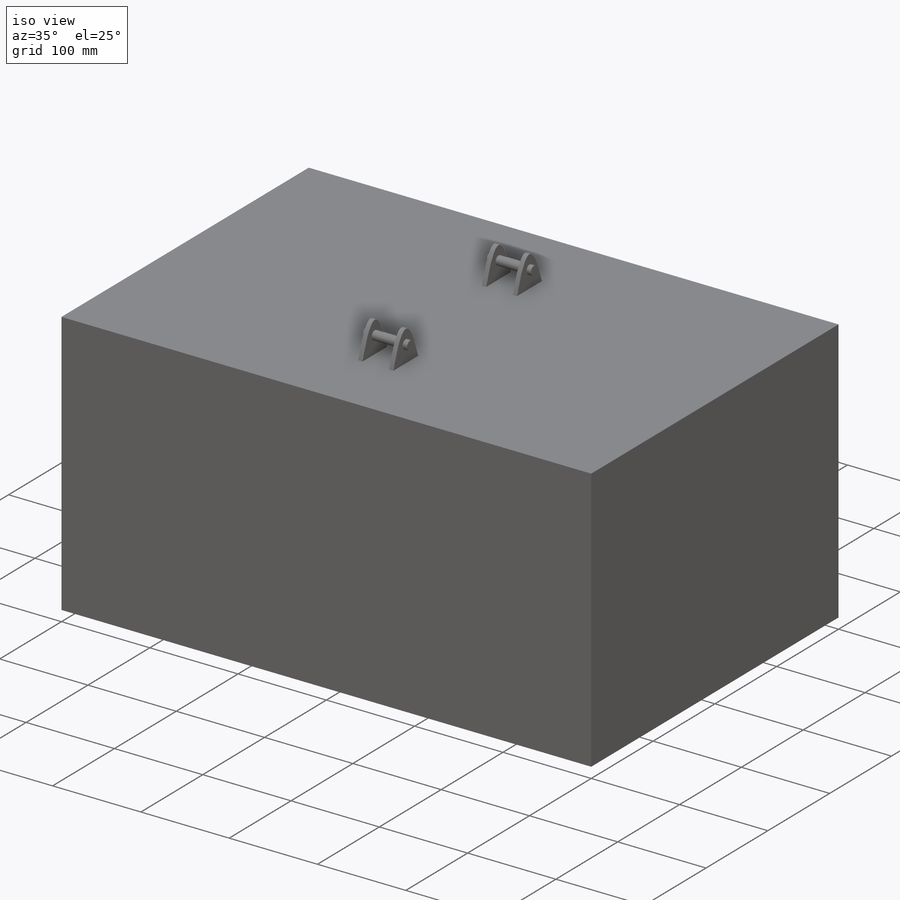
[diagram: iso view]
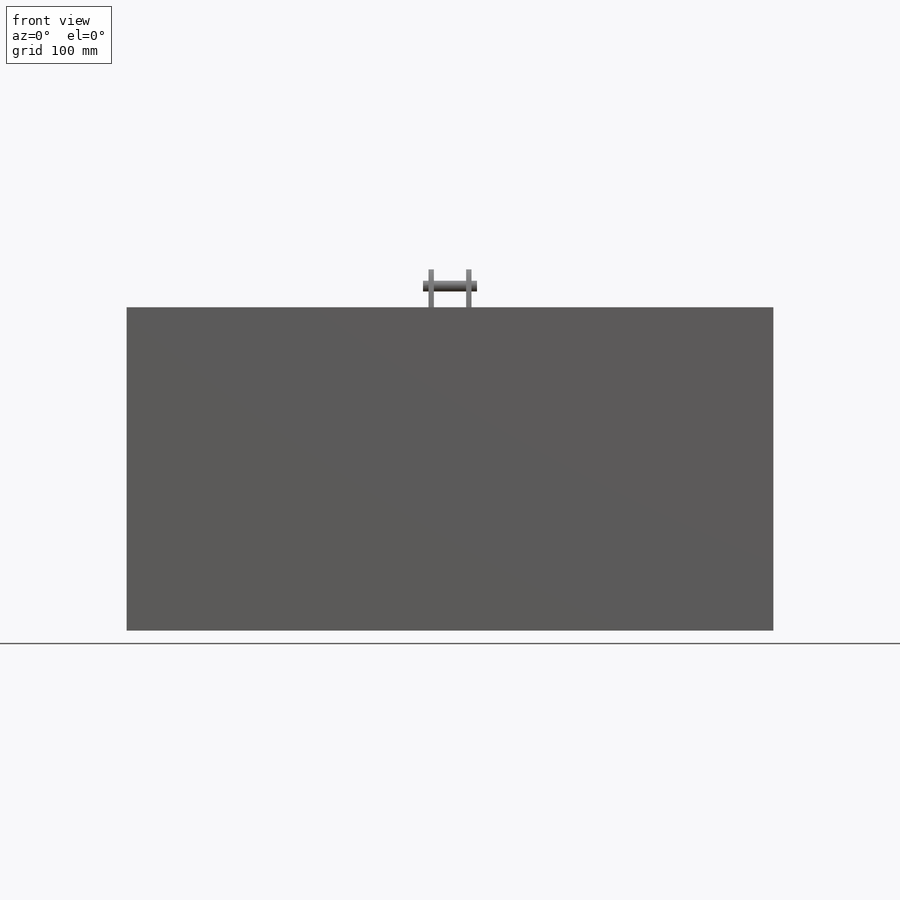
[diagram: front view]
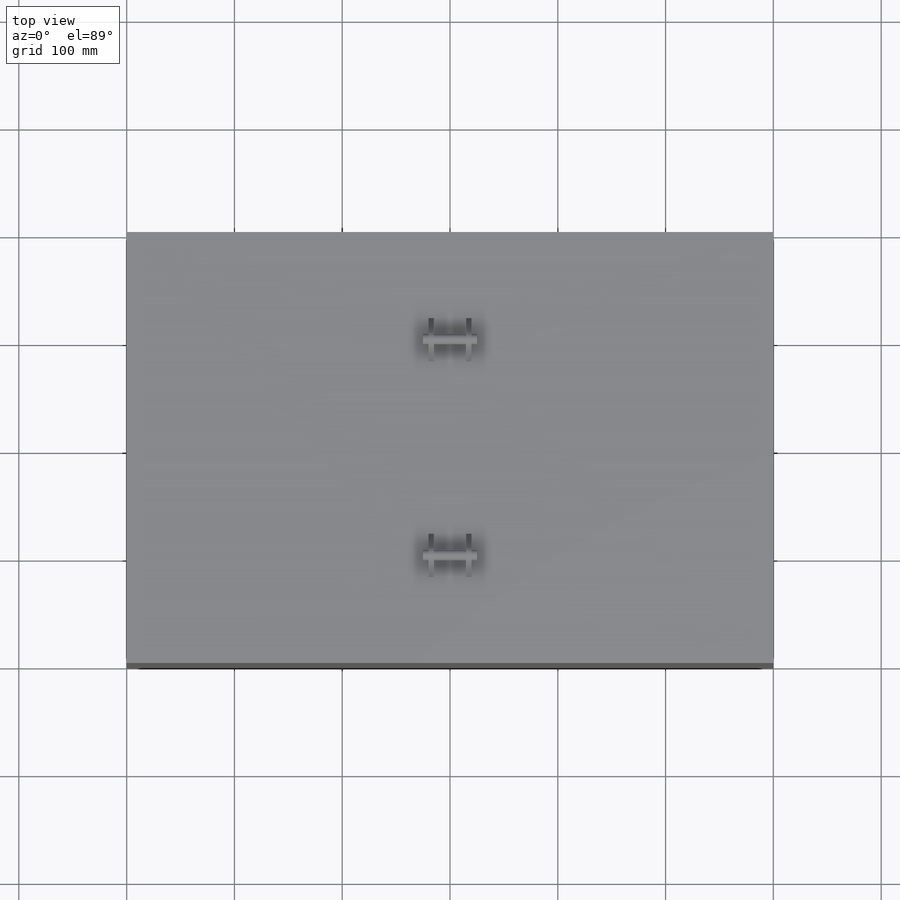
[diagram: top view]
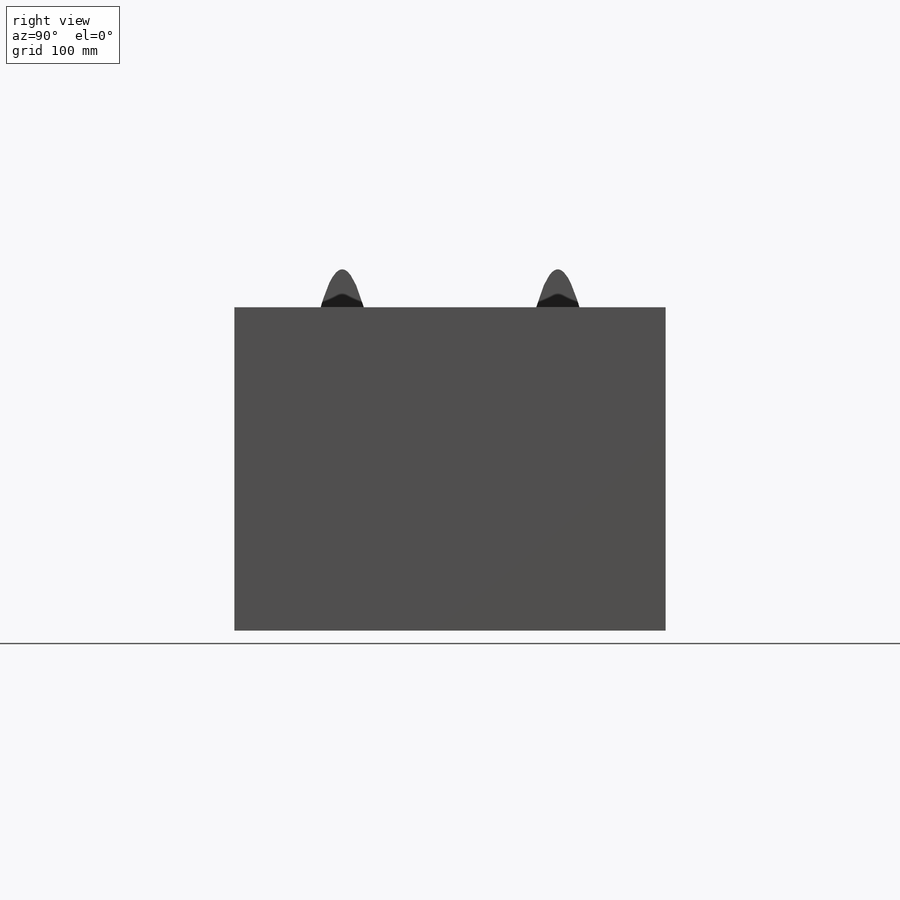
[diagram: right view]
SOLIDWORKS PART (.sldprt)
format: sldprt  version: not decoded by parser v0  size: 180,736 bytes
history: native  units: mm
features: sketch x4, extrude x3, mirror x2, material x1, plane x1 (+13 scaffold rows collapsed)
feature tree (24):
  scaffold x13  (default folders/planes/origin — collapsed)
  material  "AISI 304"
  sketch  "Sketch2"  dims[D1=300.0mm]
  extrude  "Boss-Extrude1"  Depth=300mm
  sketch  "Sketch4"
  plane  "Plane1"  Offset=20mm
  sketch  "Sketch9"  dims[D1=20.0mm]
  extrude  "Boss-Extrude4"  Depth=5mm
  sketch  "Sketch10"  dims[D1=~3.077916mm]
  extrude  "Boss-Extrude5"  Depth=5mm
  mirror  "Mirror1"
  mirror  "Mirror2"
decode coverage: 6 of 9 modeling features carry decoded parameters
note: ~ marks probable driven/reference dimensions
note: suppression state not decoded; provenance and decode notes live in map.json
